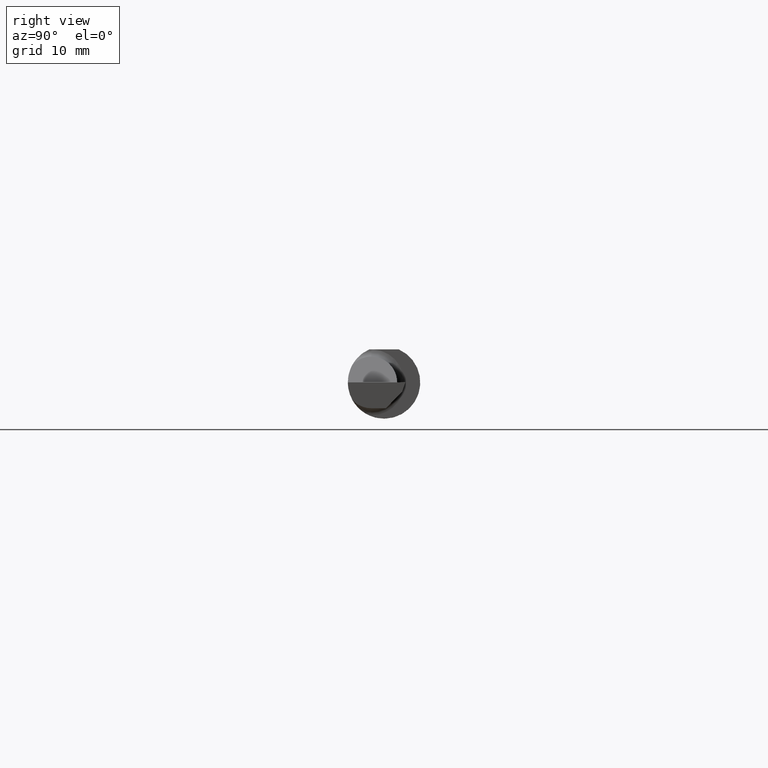
[diagram: clean part render]
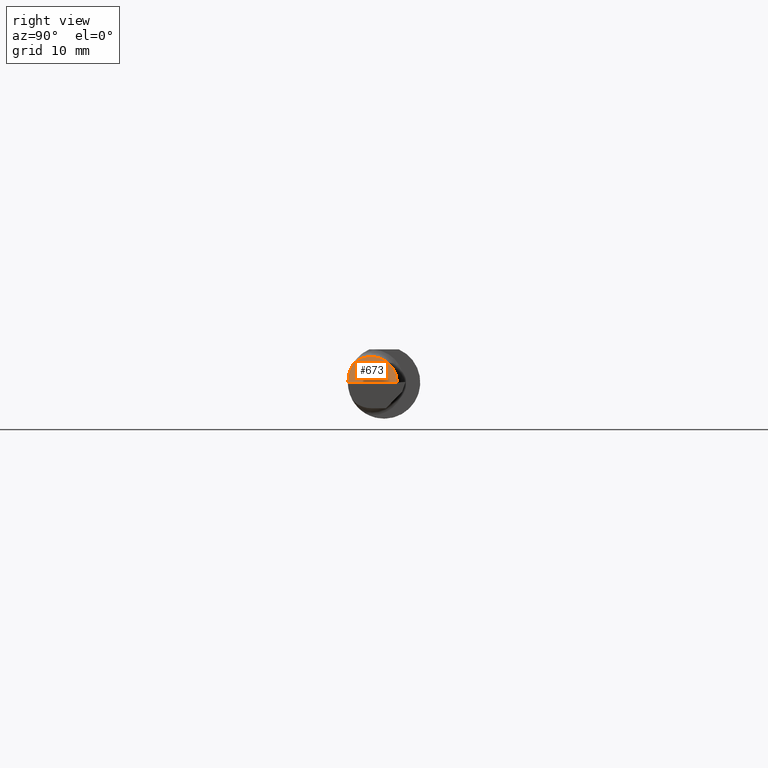
[diagram: same view with one face highlighted and labeled with its STEP entity id]
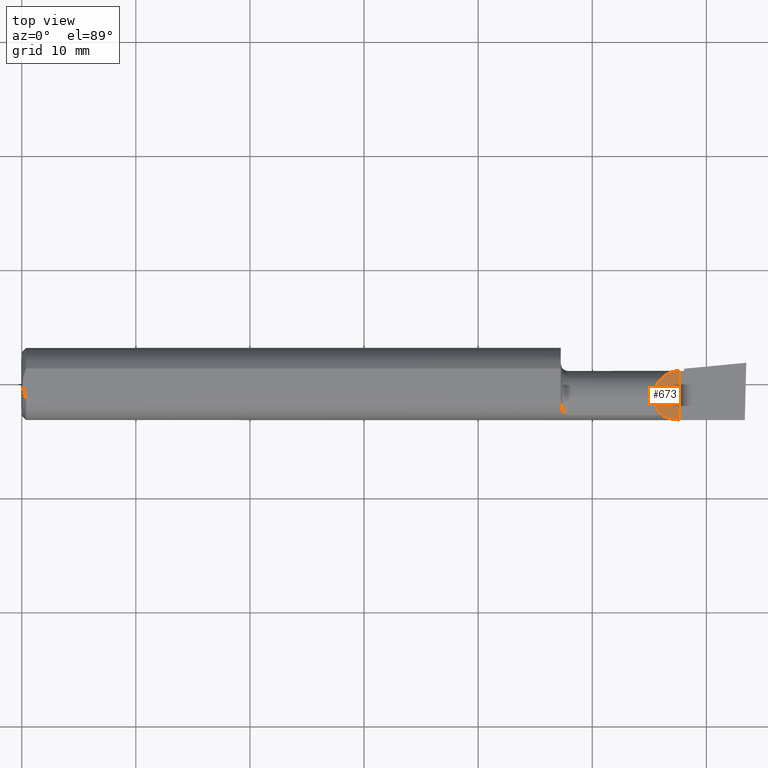
[diagram: same view with one face highlighted and labeled with its STEP entity id]
A machine part, right view. The second image highlights one B-rep face of the part: STEP entity #673.
A second angle (top view) of the same face is appended — the face is thin or edge-on in the first view.
In plain terms, the highlighted planar face has unit normal (-0.7071, 0, -0.7071).
Its self-contained STEP definition (entity closure, byte-faithful):
#14 = EDGE_LOOP ( 'NONE', ( #129, #27, #547, #354 ) ) ;
#27 = ORIENTED_EDGE ( 'NONE', *, *, #428, .F. ) ;
#30 = EDGE_CURVE ( 'NONE', #70, #323, #210, .T. ) ;
#31 = CARTESIAN_POINT ( 'NONE',  ( 2.180849999999999511, -0.04399999999999999745, 0.08914999999999995151 ) ) ;
#35 = CARTESIAN_POINT ( 'NONE',  ( 2.180849999999999067, 0.008222860914438554630, 0.08914999999999995151 ) ) ;
#38 = CARTESIAN_POINT ( 'NONE',  ( 2.208790356734260829, -0.1088159090909091575, 0.06120964326573868214 ) ) ;
#41 = PLANE ( 'NONE',  #154 ) ;
#46 = LINE ( 'NONE', #166, #505 ) ;
#51 = CARTESIAN_POINT ( 'NONE',  ( 2.270000000000000018, 0.04514999999999985691, 2.816687638038912303E-17 ) ) ;
#70 = VERTEX_POINT ( 'NONE', #38 ) ;
#78 = VERTEX_POINT ( 'NONE', #637 ) ;
#89 = CARTESIAN_POINT ( 'NONE',  ( 2.270000000000000018, 0.04514999999999985691, 2.816687638038912303E-17 ) ) ;
#92 = DIRECTION ( 'NONE',  ( -0.7071067811865507924, 0.0000000000000000000, 0.7071067811865443531 ) ) ;
#115 = EDGE_CURVE ( 'NONE', #323, #201, #724, .T. ) ;
#120 = CARTESIAN_POINT ( 'NONE',  ( 2.270000000000000018, -0.1248500000000000165, 2.816687638038912303E-17 ) ) ;
#129 = ORIENTED_EDGE ( 'NONE', *, *, #30, .F. ) ;
#154 = AXIS2_PLACEMENT_3D ( 'NONE', #712, #437, #92 ) ;
#166 = CARTESIAN_POINT ( 'NONE',  ( 2.270000000000000018, -0.2500000000000000555, 2.816687638038912303E-17 ) ) ;
#201 = VERTEX_POINT ( 'NONE', #51 ) ;
#210 =( BOUNDED_CURVE ( )  B_SPLINE_CURVE ( 3, ( #644, #325, #438, #31 ),
 .UNSPECIFIED., .F., .T. ) 
 B_SPLINE_CURVE_WITH_KNOTS ( ( 4, 4 ),
 ( 5.469179596148852518, 6.283185307179586232 ),
 .UNSPECIFIED. ) 
 CURVE ( )  GEOMETRIC_REPRESENTATION_ITEM ( )  RATIONAL_B_SPLINE_CURVE ( ( 1.000000000000000000, 0.9455409277260482526, 0.9455409277260482526, 1.000000000000000000 ) ) 
 REPRESENTATION_ITEM ( '' )  );
#258 = EDGE_CURVE ( 'NONE', #78, #201, #46, .T. ) ;
#303 = CARTESIAN_POINT ( 'NONE',  ( 2.248439214200177449, -0.1248500000000000026, 0.02156078579982230806 ) ) ;
#315 = CARTESIAN_POINT ( 'NONE',  ( 2.227582158957104319, -0.1193864177600010984, 0.04241784104289508112 ) ) ;
#323 = VERTEX_POINT ( 'NONE', #728 ) ;
#325 = CARTESIAN_POINT ( 'NONE',  ( 2.190699866855738254, -0.09173194857106671540, 0.07930013314426070936 ) ) ;
#354 = ORIENTED_EDGE ( 'NONE', *, *, #115, .F. ) ;
#428 = EDGE_CURVE ( 'NONE', #78, #70, #660, .T. ) ;
#430 = CARTESIAN_POINT ( 'NONE',  ( 2.217777139085560734, 0.04514999999999996100, 0.05222286091443856942 ) ) ;
#437 = DIRECTION ( 'NONE',  ( -0.7071067811865443531, 0.0000000000000000000, -0.7071067811865507924 ) ) ;
#438 = CARTESIAN_POINT ( 'NONE',  ( 2.180849999999999067, -0.06888227343086721077, 0.08914999999999997926 ) ) ;
#481 = CARTESIAN_POINT ( 'NONE',  ( 2.208790356734260829, -0.1088159090909091575, 0.06120964326573868214 ) ) ;
#505 = VECTOR ( 'NONE', #565, 39.37007874015748143 ) ;
#547 = ORIENTED_EDGE ( 'NONE', *, *, #258, .T. ) ;
#565 = DIRECTION ( 'NONE',  ( -0.0000000000000000000, 1.000000000000000000, -0.0000000000000000000 ) ) ;
#637 = CARTESIAN_POINT ( 'NONE',  ( 2.270000000000000018, -0.1248500000000000165, 2.816687638038912303E-17 ) ) ;
#644 = CARTESIAN_POINT ( 'NONE',  ( 2.208790356734260829, -0.1088159090909091575, 0.06120964326573868214 ) ) ;
#660 =( BOUNDED_CURVE ( )  B_SPLINE_CURVE ( 3, ( #120, #303, #315, #481 ),
 .UNSPECIFIED., .F., .T. ) 
 B_SPLINE_CURVE_WITH_KNOTS ( ( 4, 4 ),
 ( 4.712388980384689674, 5.224783288303640028 ),
 .UNSPECIFIED. ) 
 CURVE ( )  GEOMETRIC_REPRESENTATION_ITEM ( )  RATIONAL_B_SPLINE_CURVE ( ( 1.000000000000000000, 0.9782404171696015283, 0.9782404171696015283, 1.000000000000000000 ) ) 
 REPRESENTATION_ITEM ( '' )  );
#673 = ADVANCED_FACE ( 'NONE', ( #675 ), #41, .F. ) ;
#675 = FACE_OUTER_BOUND ( 'NONE', #14, .T. ) ;
#703 = CARTESIAN_POINT ( 'NONE',  ( 2.180849999999999511, -0.04399999999999999745, 0.08914999999999995151 ) ) ;
#712 = CARTESIAN_POINT ( 'NONE',  ( 2.270000000000000018, -0.2500000000000000555, 2.816687638038912303E-17 ) ) ;
#724 =( BOUNDED_CURVE ( )  B_SPLINE_CURVE ( 3, ( #703, #35, #430, #89 ),
 .UNSPECIFIED., .F., .T. ) 
 B_SPLINE_CURVE_WITH_KNOTS ( ( 4, 4 ),
 ( 0.0000000000000000000, 1.570796326794896558 ),
 .UNSPECIFIED. ) 
 CURVE ( )  GEOMETRIC_REPRESENTATION_ITEM ( )  RATIONAL_B_SPLINE_CURVE ( ( 1.000000000000000000, 0.8047378541243649375, 0.8047378541243649375, 1.000000000000000000 ) ) 
 REPRESENTATION_ITEM ( '' )  );
#728 = CARTESIAN_POINT ( 'NONE',  ( 2.180849999999999511, -0.04399999999999999745, 0.08914999999999995151 ) ) ;